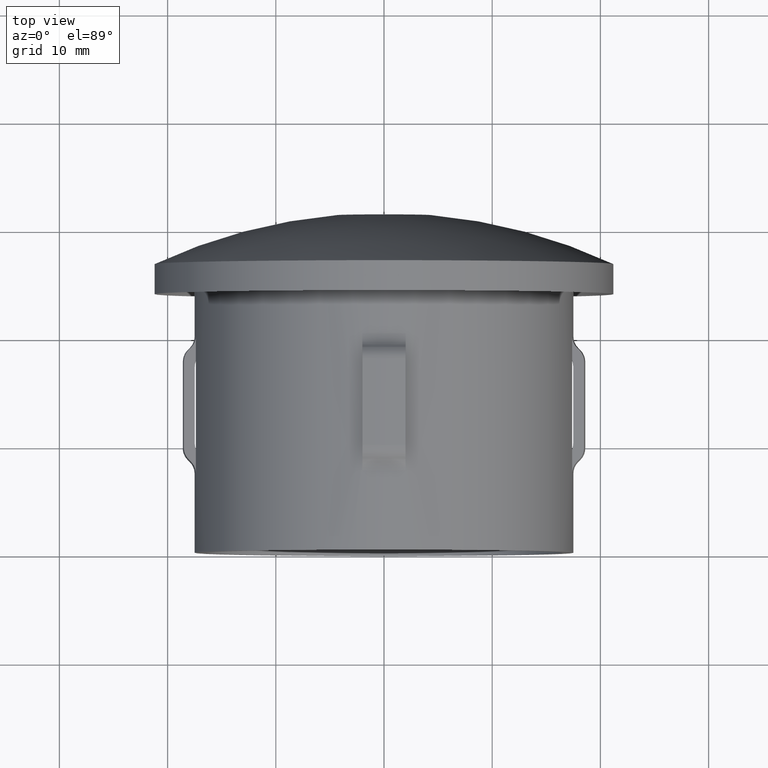
[diagram: clean part render]
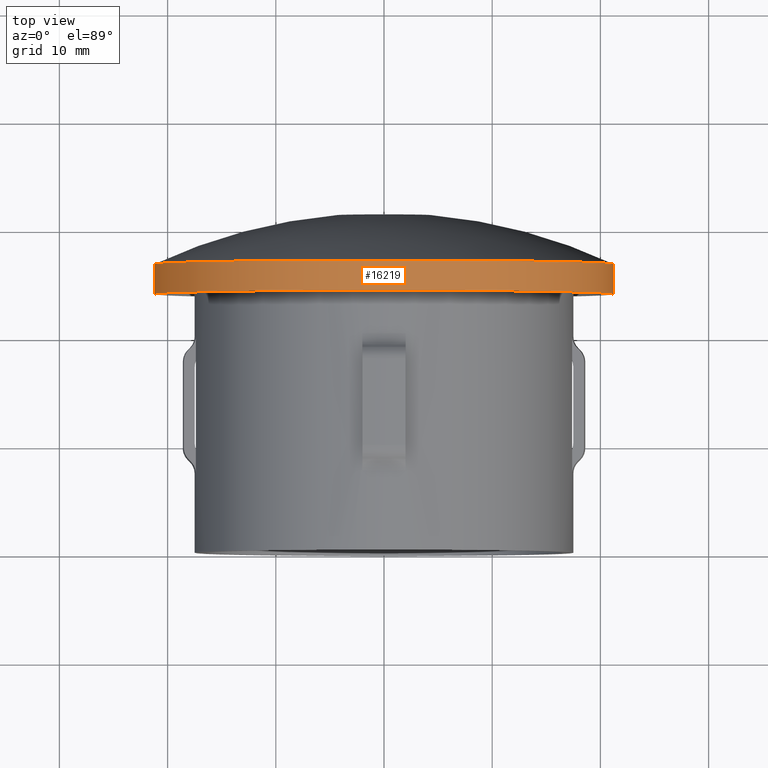
[diagram: same view with one face highlighted and labeled with its STEP entity id]
A machine part, top view. The second image highlights one B-rep face of the part: STEP entity #16219.
In plain terms, the highlighted cylindrical surface (partial cylindrical patch) has radius 21.2 mm, axis along (-0, -1, -0).
Its self-contained STEP definition (entity closure, byte-faithful):
#506 = CYLINDRICAL_SURFACE ( 'NONE', #11726, 21.20000000000001400 ) ;
#872 = DIRECTION ( 'NONE',  ( -2.904862207577519400E-015, -1.000000000000000000, -0.0000000000000000000 ) ) ;
#1201 = EDGE_CURVE ( 'NONE', #14427, #13751, #15101, .T. ) ;
#1562 = CARTESIAN_POINT ( 'NONE',  ( -21.19999999999988600, 26.68310943387181300, 2.596251214192390300E-015 ) ) ;
#1563 = DIRECTION ( 'NONE',  ( 1.000000000000000000, -2.945756845998349400E-015, 0.0000000000000000000 ) ) ;
#1646 = CARTESIAN_POINT ( 'NONE',  ( -21.20000000000001400, 28.90000000000005900, 2.596251214192390700E-015 ) ) ;
#1777 = CIRCLE ( 'NONE', #9150, 21.20000000000001700 ) ;
#1819 = ORIENTED_EDGE ( 'NONE', *, *, #6829, .F. ) ;
#1953 = CARTESIAN_POINT ( 'NONE',  ( 21.20000000000001000, 23.90658772472802000, 0.0000000000000000000 ) ) ;
#2017 = EDGE_CURVE ( 'NONE', #5964, #14427, #11794, .T. ) ;
#2233 = EDGE_LOOP ( 'NONE', ( #13089, #7010, #1819, #13194 ) ) ;
#2419 = EDGE_CURVE ( 'NONE', #5964, #6927, #7633, .T. ) ;
#3316 = VECTOR ( 'NONE', #6860, 1000.000000000000000 ) ;
#3950 = CARTESIAN_POINT ( 'NONE',  ( -21.19999999999990000, 23.90658772472814800, 2.596251214192391900E-015 ) ) ;
#4897 = DIRECTION ( 'NONE',  ( -2.904862207577519400E-015, -1.000000000000000000, -0.0000000000000000000 ) ) ;
#5964 = VERTEX_POINT ( 'NONE', #13017 ) ;
#6475 = VECTOR ( 'NONE', #14520, 1000.000000000000000 ) ;
#6829 = EDGE_CURVE ( 'NONE', #6927, #13751, #1777, .T. ) ;
#6860 = DIRECTION ( 'NONE',  ( -2.904862207577519400E-015, -1.000000000000000000, -0.0000000000000000000 ) ) ;
#6927 = VERTEX_POINT ( 'NONE', #1953 ) ;
#7010 = ORIENTED_EDGE ( 'NONE', *, *, #1201, .T. ) ;
#7633 = LINE ( 'NONE', #13192, #6475 ) ;
#7959 = DIRECTION ( 'NONE',  ( -2.904862207577519400E-015, -1.000000000000000000, -0.0000000000000000000 ) ) ;
#8975 = AXIS2_PLACEMENT_3D ( 'NONE', #15972, #872, #9724 ) ;
#9150 = AXIS2_PLACEMENT_3D ( 'NONE', #12945, #7959, #1563 ) ;
#9724 = DIRECTION ( 'NONE',  ( 1.000000000000000000, -2.945756845998350200E-015, 0.0000000000000000000 ) ) ;
#11726 = AXIS2_PLACEMENT_3D ( 'NONE', #14908, #4897, #13745 ) ;
#11794 = CIRCLE ( 'NONE', #8975, 21.20000000000001000 ) ;
#12945 = CARTESIAN_POINT ( 'NONE',  ( -1.450517460529105200E-014, 23.90658772472808400, 0.0000000000000000000 ) ) ;
#13017 = CARTESIAN_POINT ( 'NONE',  ( 21.20000000000000300, 26.68310943387169200, 0.0000000000000000000 ) ) ;
#13089 = ORIENTED_EDGE ( 'NONE', *, *, #2017, .T. ) ;
#13192 = CARTESIAN_POINT ( 'NONE',  ( 21.20000000000001400, 28.89999999999993100, 0.0000000000000000000 ) ) ;
#13194 = ORIENTED_EDGE ( 'NONE', *, *, #2419, .F. ) ;
#13745 = DIRECTION ( 'NONE',  ( 1.000000000000000000, -2.945756845998349800E-015, 0.0000000000000000000 ) ) ;
#13751 = VERTEX_POINT ( 'NONE', #3950 ) ;
#14280 = FACE_OUTER_BOUND ( 'NONE', #2233, .T. ) ;
#14427 = VERTEX_POINT ( 'NONE', #1562 ) ;
#14520 = DIRECTION ( 'NONE',  ( -2.904862207577519400E-015, -1.000000000000000000, -0.0000000000000000000 ) ) ;
#14908 = CARTESIAN_POINT ( 'NONE',  ( 0.0000000000000000000, 28.89999999999999500, 0.0000000000000000000 ) ) ;
#15101 = LINE ( 'NONE', #1646, #3316 ) ;
#15972 = CARTESIAN_POINT ( 'NONE',  ( -6.439761623881060800E-015, 26.68310943387175600, 0.0000000000000000000 ) ) ;
#16219 = ADVANCED_FACE ( 'NONE', ( #14280 ), #506, .T. ) ;